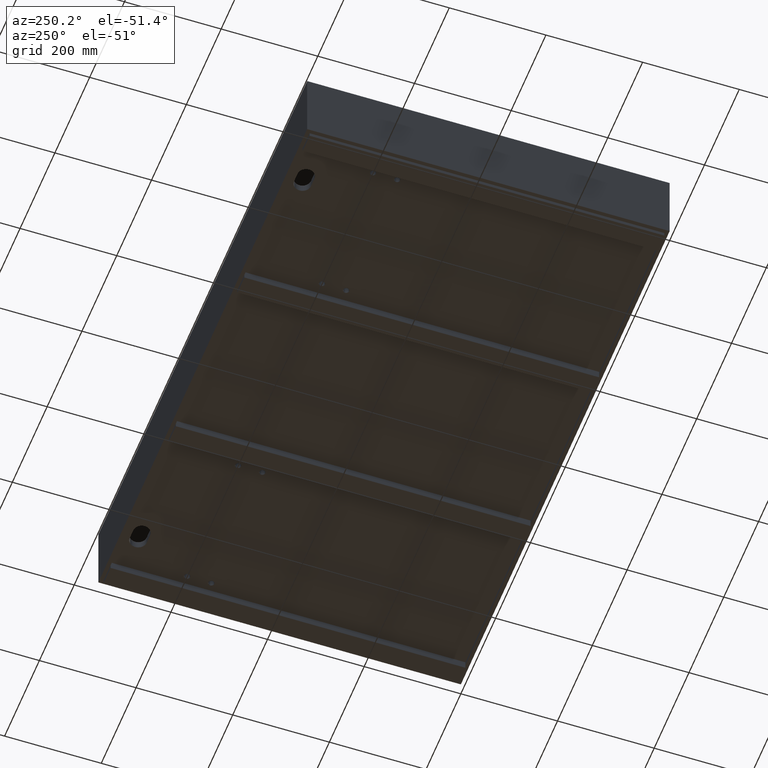
[diagram: clean part render]
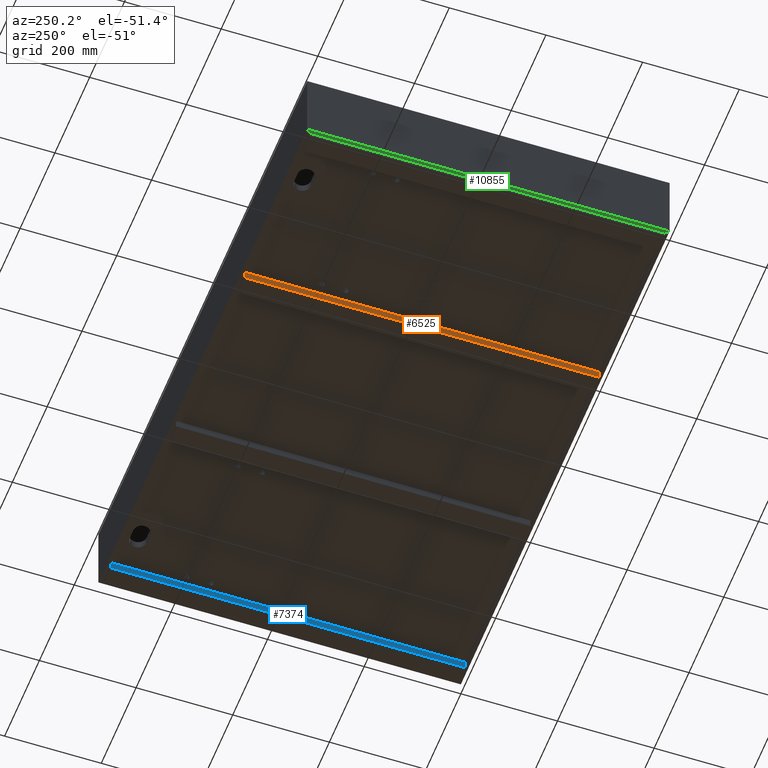
[diagram: same view with three faces highlighted in distinct colors, each labeled with its STEP entity id]
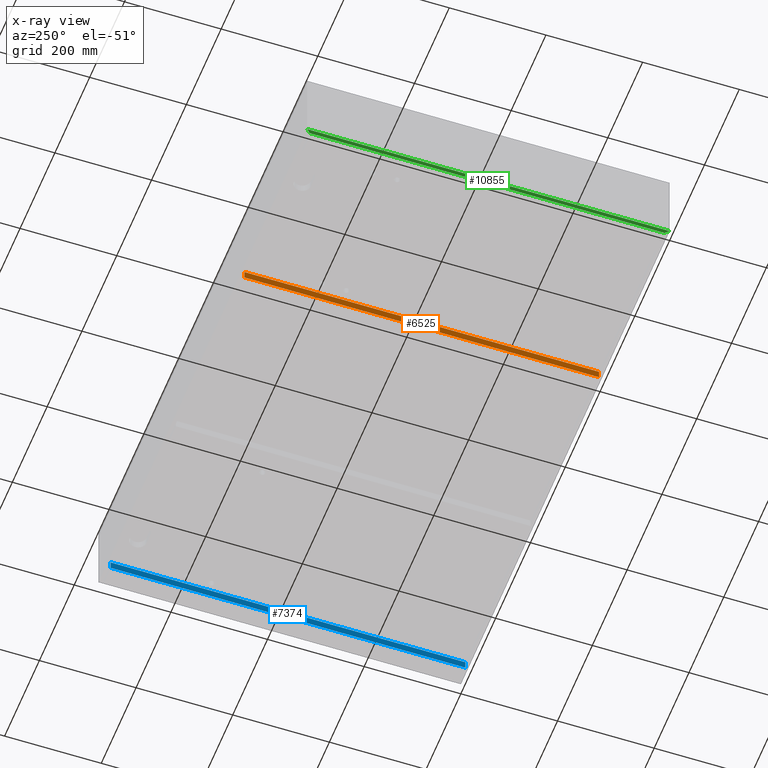
[diagram: x-ray of the same camera — body ghosted, the three highlighted faces saturated]
A machine part, auxiliary view with three faces highlighted in distinct colors.
The next image is the same camera in x-ray (body ghosted, the three faces saturated) — at least one of them is partly hidden behind the body in this view.
Their STEP definitions:

[orange] entity #6525 — the highlighted planar face has unit normal (1, -0, -0).
#68 = ORIENTED_EDGE ( 'NONE', *, *, #4398, .F. ) ;
#225 = CARTESIAN_POINT ( 'NONE',  ( 383.1633333300000572, 741.9999000000000251, -158.0000000000003126 ) ) ;
#291 = CARTESIAN_POINT ( 'NONE',  ( 383.1633333300000572, 741.9999000000000251, -158.0000000000003126 ) ) ;
#892 = DIRECTION ( 'NONE',  ( 1.423362852083534393E-16, 0.0000000000000000000, 1.000000000000000000 ) ) ;
#1205 = VECTOR ( 'NONE', #12758, 1000.000000000000000 ) ;
#1758 = ORIENTED_EDGE ( 'NONE', *, *, #3377, .F. ) ;
#1905 = LINE ( 'NONE', #7311, #1205 ) ;
#2103 = AXIS2_PLACEMENT_3D ( 'NONE', #2286, #7684, #13131 ) ;
#2286 = CARTESIAN_POINT ( 'NONE',  ( 383.1633333300000572, 741.9999000000000251, -158.0000000000003126 ) ) ;
#2596 = CARTESIAN_POINT ( 'NONE',  ( 383.1633333300000004, 8.000000000000007105, -158.0000000000003126 ) ) ;
#3377 = EDGE_CURVE ( 'NONE', #4609, #8255, #12465, .T. ) ;
#4177 = LINE ( 'NONE', #9611, #11348 ) ;
#4398 = EDGE_CURVE ( 'NONE', #8255, #8640, #1905, .T. ) ;
#4609 = VERTEX_POINT ( 'NONE', #2596 ) ;
#5691 = DIRECTION ( 'NONE',  ( 7.562828173581198609E-17, 1.000000000000000000, 0.0000000000000000000 ) ) ;
#6525 = ADVANCED_FACE ( 'NONE', ( #9028 ), #14458, .F. ) ;
#7140 = EDGE_LOOP ( 'NONE', ( #16907, #68, #1758, #12853 ) ) ;
#7311 = CARTESIAN_POINT ( 'NONE',  ( 383.1633333300000572, 741.9999000000000251, -158.0000000000003126 ) ) ;
#7352 = CARTESIAN_POINT ( 'NONE',  ( 383.1633333300000004, 8.000000000000007105, -141.0000000000002842 ) ) ;
#7632 = LINE ( 'NONE', #13080, #11089 ) ;
#7684 = DIRECTION ( 'NONE',  ( 1.000000000000000000, -7.562828173581198609E-17, -1.423362852083534393E-16 ) ) ;
#8255 = VERTEX_POINT ( 'NONE', #225 ) ;
#8640 = VERTEX_POINT ( 'NONE', #15282 ) ;
#9028 = FACE_OUTER_BOUND ( 'NONE', #7140, .T. ) ;
#9611 = CARTESIAN_POINT ( 'NONE',  ( 383.1633333300000572, 741.9999000000000251, -141.0000000000002842 ) ) ;
#11005 = VERTEX_POINT ( 'NONE', #7352 ) ;
#11089 = VECTOR ( 'NONE', #892, 1000.000000000000000 ) ;
#11348 = VECTOR ( 'NONE', #15034, 1000.000000000000000 ) ;
#12145 = EDGE_CURVE ( 'NONE', #11005, #8640, #4177, .T. ) ;
#12465 = LINE ( 'NONE', #291, #16704 ) ;
#12758 = DIRECTION ( 'NONE',  ( 1.423362852083534393E-16, 0.0000000000000000000, 1.000000000000000000 ) ) ;
#12853 = ORIENTED_EDGE ( 'NONE', *, *, #14236, .T. ) ;
#13080 = CARTESIAN_POINT ( 'NONE',  ( 383.1633333300000004, 8.000000000000007105, -158.0000000000003126 ) ) ;
#13131 = DIRECTION ( 'NONE',  ( -1.423362852083534393E-16, 0.0000000000000000000, -1.000000000000000000 ) ) ;
#14236 = EDGE_CURVE ( 'NONE', #4609, #11005, #7632, .T. ) ;
#14458 = PLANE ( 'NONE',  #2103 ) ;
#15034 = DIRECTION ( 'NONE',  ( 7.562828173581198609E-17, 1.000000000000000000, 0.0000000000000000000 ) ) ;
#15282 = CARTESIAN_POINT ( 'NONE',  ( 383.1633333300000572, 741.9999000000000251, -141.0000000000002842 ) ) ;
#16704 = VECTOR ( 'NONE', #5691, 1000.000000000000000 ) ;
#16907 = ORIENTED_EDGE ( 'NONE', *, *, #12145, .T. ) ;

[blue] entity #7374 — the highlighted planar face has unit normal (1, -0, -0).
#376 = VERTEX_POINT ( 'NONE', #10175 ) ;
#1057 = CARTESIAN_POINT ( 'NONE',  ( 1152.000000000000227, 741.9999000000000251, -158.0000000000004263 ) ) ;
#1128 = DIRECTION ( 'NONE',  ( -1.433304018933265267E-36, 1.000000000000000000, 0.0000000000000000000 ) ) ;
#1427 = CARTESIAN_POINT ( 'NONE',  ( 1152.000000000000227, 741.9999000000000251, -158.0000000000004263 ) ) ;
#2407 = VERTEX_POINT ( 'NONE', #15459 ) ;
#2869 = ORIENTED_EDGE ( 'NONE', *, *, #8433, .F. ) ;
#3941 = DIRECTION ( 'NONE',  ( 1.423362852083534393E-16, 0.0000000000000000000, 1.000000000000000000 ) ) ;
#4761 = VECTOR ( 'NONE', #1128, 1000.000000000000000 ) ;
#4821 = VERTEX_POINT ( 'NONE', #17045 ) ;
#4859 = CARTESIAN_POINT ( 'NONE',  ( 1152.000000000000227, 8.000000000000007105, -158.0000000000004263 ) ) ;
#4901 = CARTESIAN_POINT ( 'NONE',  ( 1152.000000000000227, 741.9999000000000251, -141.0000000000003979 ) ) ;
#6457 = DIRECTION ( 'NONE',  ( 1.423362852083534393E-16, 0.0000000000000000000, 1.000000000000000000 ) ) ;
#6822 = DIRECTION ( 'NONE',  ( 1.000000000000000000, -3.771910154540663169E-36, -1.423362852083534393E-16 ) ) ;
#7167 = VERTEX_POINT ( 'NONE', #4859 ) ;
#7374 = ADVANCED_FACE ( 'NONE', ( #8157 ), #13602, .F. ) ;
#7858 = LINE ( 'NONE', #13303, #4761 ) ;
#7996 = EDGE_CURVE ( 'NONE', #4821, #2407, #17091, .T. ) ;
#8076 = VECTOR ( 'NONE', #6457, 1000.000000000000000 ) ;
#8157 = FACE_OUTER_BOUND ( 'NONE', #15568, .T. ) ;
#8433 = EDGE_CURVE ( 'NONE', #376, #2407, #13232, .T. ) ;
#10175 = CARTESIAN_POINT ( 'NONE',  ( 1152.000000000000227, 741.9999000000000251, -158.0000000000004263 ) ) ;
#10337 = DIRECTION ( 'NONE',  ( -1.433304018933265267E-36, 1.000000000000000000, 0.0000000000000000000 ) ) ;
#10690 = LINE ( 'NONE', #16129, #14193 ) ;
#11120 = ORIENTED_EDGE ( 'NONE', *, *, #15944, .F. ) ;
#11208 = VECTOR ( 'NONE', #10337, 1000.000000000000000 ) ;
#12220 = ORIENTED_EDGE ( 'NONE', *, *, #7996, .T. ) ;
#12265 = DIRECTION ( 'NONE',  ( -1.423362852083534393E-16, 0.0000000000000000000, -1.000000000000000000 ) ) ;
#12506 = ORIENTED_EDGE ( 'NONE', *, *, #12727, .T. ) ;
#12727 = EDGE_CURVE ( 'NONE', #7167, #4821, #10690, .T. ) ;
#13232 = LINE ( 'NONE', #1057, #8076 ) ;
#13303 = CARTESIAN_POINT ( 'NONE',  ( 1152.000000000000227, 741.9999000000000251, -158.0000000000004263 ) ) ;
#13602 = PLANE ( 'NONE',  #14334 ) ;
#14193 = VECTOR ( 'NONE', #3941, 1000.000000000000000 ) ;
#14334 = AXIS2_PLACEMENT_3D ( 'NONE', #1427, #6822, #12265 ) ;
#15459 = CARTESIAN_POINT ( 'NONE',  ( 1152.000000000000227, 741.9999000000000251, -141.0000000000003979 ) ) ;
#15568 = EDGE_LOOP ( 'NONE', ( #12220, #2869, #11120, #12506 ) ) ;
#15944 = EDGE_CURVE ( 'NONE', #7167, #376, #7858, .T. ) ;
#16129 = CARTESIAN_POINT ( 'NONE',  ( 1152.000000000000227, 8.000000000000007105, -158.0000000000004263 ) ) ;
#17045 = CARTESIAN_POINT ( 'NONE',  ( 1152.000000000000227, 8.000000000000007105, -141.0000000000003979 ) ) ;
#17091 = LINE ( 'NONE', #4901, #11208 ) ;

[green] entity #10855 — the highlighted planar face has unit normal (-0, -0, 1).
#1942 = ORIENTED_EDGE ( 'NONE', *, *, #15592, .T. ) ;
#2268 = DIRECTION ( 'NONE',  ( 0.7071067811865473507, -0.7071067811865477948, 1.734723475976807480E-18 ) ) ;
#2535 = VECTOR ( 'NONE', #4931, 1000.000000000000000 ) ;
#3801 = CARTESIAN_POINT ( 'NONE',  ( 8.000000000000000000, 742.0000000000001137, -150.0000000000000000 ) ) ;
#4074 = DIRECTION ( 'NONE',  ( -2.710505431213760483E-20, -1.000000000000000000, 2.749151309432238057E-19 ) ) ;
#4173 = CARTESIAN_POINT ( 'NONE',  ( 0.0000000000000000000, 900.2131818450034189, -150.0000000000000000 ) ) ;
#4394 = VECTOR ( 'NONE', #2268, 999.9999999999998863 ) ;
#4908 = DIRECTION ( 'NONE',  ( -0.7071067811865474617, -0.7071067811865475727, -4.336808689942017736E-19 ) ) ;
#4912 = ORIENTED_EDGE ( 'NONE', *, *, #12362, .F. ) ;
#4931 = DIRECTION ( 'NONE',  ( -2.710505431213760483E-20, -1.000000000000000000, 2.749151309432238057E-19 ) ) ;
#6156 = CARTESIAN_POINT ( 'NONE',  ( 4.336808689942017736E-16, -5.551115123125782702E-14, -149.9999999999999716 ) ) ;
#6950 = EDGE_CURVE ( 'NONE', #14779, #14757, #9007, .T. ) ;
#8922 = VERTEX_POINT ( 'NONE', #9386 ) ;
#9007 = LINE ( 'NONE', #14439, #4394 ) ;
#9386 = CARTESIAN_POINT ( 'NONE',  ( 8.000000000000000000, 8.000000000000007105, -150.0000000000000000 ) ) ;
#9607 = DIRECTION ( 'NONE',  ( -1.734723475976807480E-18, -2.749151309432238538E-19, 1.000000000000000000 ) ) ;
#9996 = EDGE_LOOP ( 'NONE', ( #1942, #12849, #4912, #10078 ) ) ;
#10078 = ORIENTED_EDGE ( 'NONE', *, *, #6950, .T. ) ;
#10842 = LINE ( 'NONE', #16263, #11572 ) ;
#10855 = ADVANCED_FACE ( 'NONE', ( #10933 ), #16357, .F. ) ;
#10933 = FACE_OUTER_BOUND ( 'NONE', #9996, .T. ) ;
#11533 = EDGE_CURVE ( 'NONE', #8922, #16802, #11687, .T. ) ;
#11572 = VECTOR ( 'NONE', #4074, 1000.000000000000000 ) ;
#11604 = VECTOR ( 'NONE', #4908, 1000.000000000000000 ) ;
#11687 = LINE ( 'NONE', #17101, #11604 ) ;
#11709 = LINE ( 'NONE', #17123, #2535 ) ;
#12362 = EDGE_CURVE ( 'NONE', #14779, #16802, #11709, .T. ) ;
#12849 = ORIENTED_EDGE ( 'NONE', *, *, #11533, .T. ) ;
#14439 = CARTESIAN_POINT ( 'NONE',  ( -5.204170427930421283E-15, 750.0000000000001137, -149.9999999999999716 ) ) ;
#14757 = VERTEX_POINT ( 'NONE', #3801 ) ;
#14779 = VERTEX_POINT ( 'NONE', #17404 ) ;
#15029 = DIRECTION ( 'NONE',  ( 1.000000000000000000, 2.710505431213761687E-20, 1.734723475976807480E-18 ) ) ;
#15592 = EDGE_CURVE ( 'NONE', #14757, #8922, #10842, .T. ) ;
#15844 = AXIS2_PLACEMENT_3D ( 'NONE', #4173, #9607, #15029 ) ;
#16263 = CARTESIAN_POINT ( 'NONE',  ( 8.000000000000000000, 900.2131818450034189, -150.0000000000000284 ) ) ;
#16357 = PLANE ( 'NONE',  #15844 ) ;
#16802 = VERTEX_POINT ( 'NONE', #6156 ) ;
#17101 = CARTESIAN_POINT ( 'NONE',  ( 8.000000000000000000, 8.000000000000007105, -150.0000000000000000 ) ) ;
#17123 = CARTESIAN_POINT ( 'NONE',  ( 0.0000000000000000000, 900.2131818450034189, -150.0000000000000000 ) ) ;
#17404 = CARTESIAN_POINT ( 'NONE',  ( 0.0000000000000000000, 750.0000000000001137, -149.9999999999999716 ) ) ;